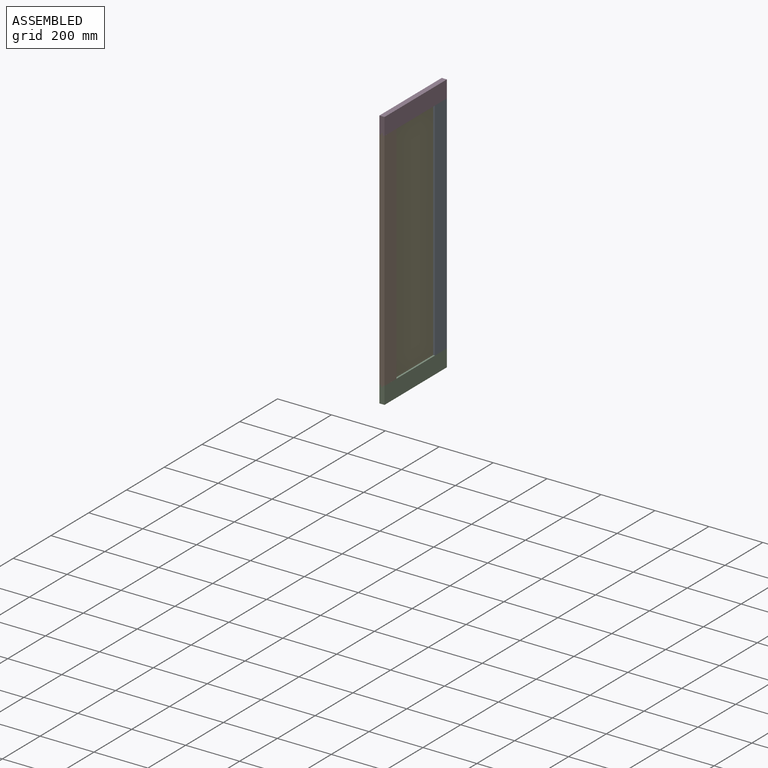
[diagram: assembled view]
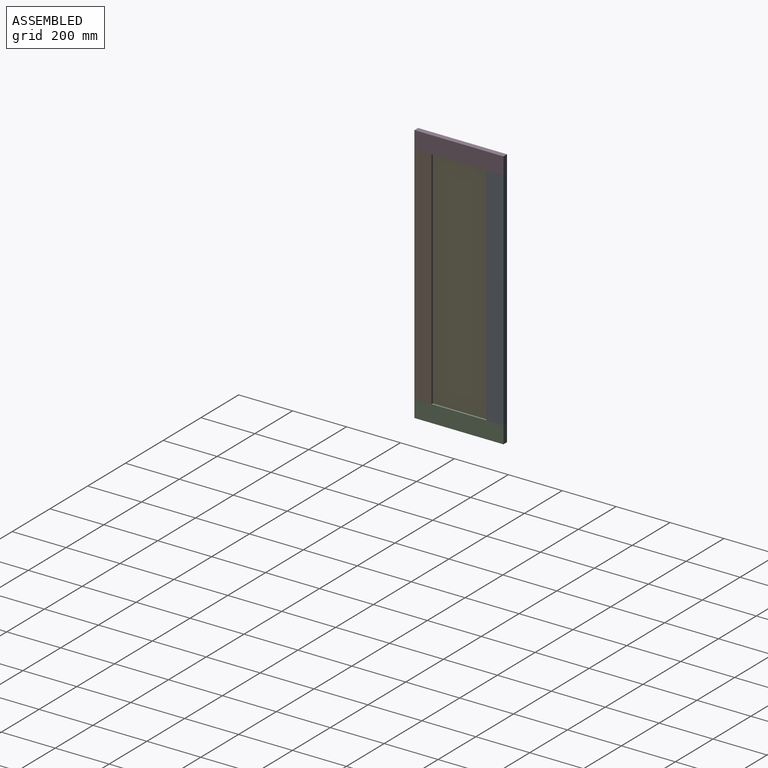
[diagram: assembled view, second angle]
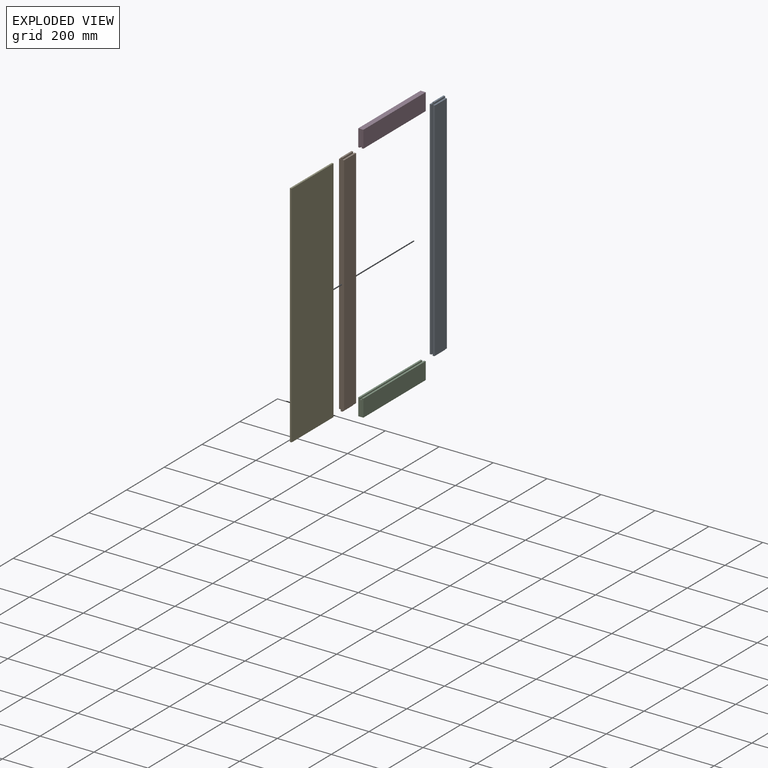
[diagram: exploded view]
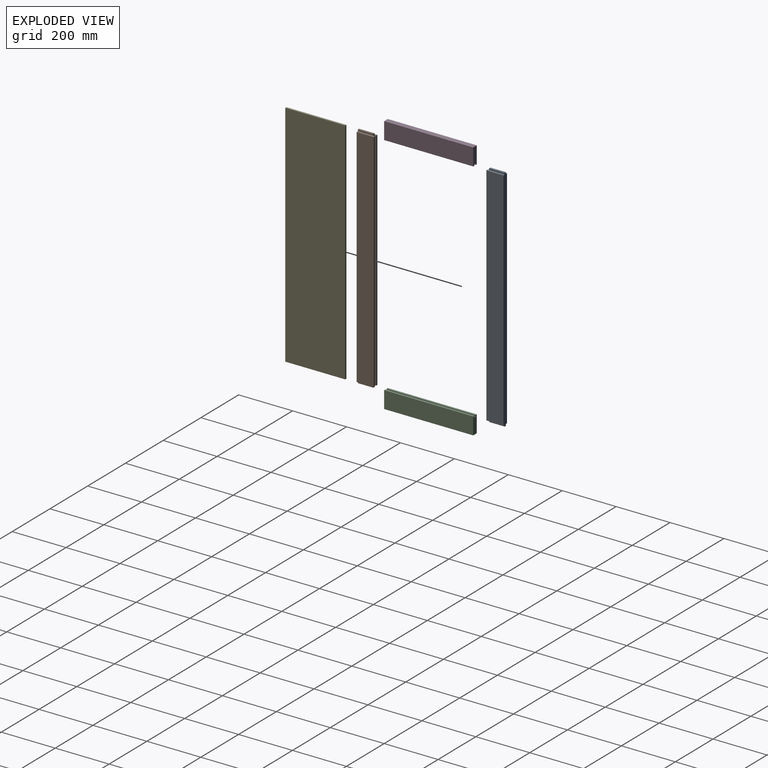
[diagram: exploded view, second angle]
ASSEMBLY  parts=5 mates=4
PART A: 18 faces, bbox 19.1x63.5x850.9 mm
  f0: plane 850.9x19.05mm, normal (0,-1,0), area 16048.4mm2, adj f2,f3,f6,f7,f10,f11,f12,f13
  f1: plane 838.2x6.35mm, normal (1,0,0), area 5322.6mm2, adj f4,f9,f11,f17
  f2: plane 838.2x63.5mm, normal (1,0,0), area 53225.7mm2, adj f0,f5,f13,f15
  f3: plane 838.2x63.5mm, normal (-1,0,0), area 53225.7mm2, adj f0,f4,f11,f17
  f4: plane 838.2x6.35mm, normal (0,1,0), area 5322.6mm2, adj f1,f3,f11,f17
  f5: plane 838.2x6.35mm, normal (0,1,0), area 5322.6mm2, adj f2,f8,f13,f15
  f6: plane 57.15x6.35mm, normal (0,0,1), area 362.9mm2, adj f0,f9,f10,f12
  f7: plane 57.15x6.35mm, normal (0,0,-1), area 362.9mm2, adj f0,f9,f14,f16
  f8: plane 838.2x6.35mm, normal (-1,0,0), area 5322.6mm2, adj f5,f9,f13,f15
  f9: plane 850.9x6.35mm, normal (0,1,0), area 5403.2mm2, adj f1,f6,f7,f8,f10,f12,f14,f16
  f10: plane 57.15x6.35mm, normal (-1,0,0), area 362.9mm2, adj f0,f6,f9,f11
  f11: plane 63.5x6.35mm, normal (0,0,1), area 403.2mm2, adj f0,f1,f3,f4,f10
  f12: plane 57.15x6.35mm, normal (1,0,0), area 362.9mm2, adj f0,f6,f9,f13
  f13: plane 63.5x6.35mm, normal (0,0,1), area 403.2mm2, adj f0,f2,f5,f8,f12
  f14: plane 57.15x6.35mm, normal (1,0,0), area 362.9mm2, adj f0,f7,f9,f15
  f15: plane 63.5x6.35mm, normal (0,0,-1), area 403.2mm2, adj f0,f2,f5,f8,f14
  f16: plane 57.15x6.35mm, normal (-1,0,0), area 362.9mm2, adj f0,f7,f9,f17
  f17: plane 63.5x6.35mm, normal (0,0,-1), area 403.2mm2, adj f0,f1,f3,f4,f16
PART B: same geometry as A
PART C: 10 faces, bbox 19.1x330.2x63.5 mm
  f0: plane 330.2x6.35mm, normal (0,0,1), area 2096.8mm2, adj f1,f4,f5,f8
  f1: plane 63.5x19.05mm, normal (0,-1,0), area 1169.4mm2, adj f0,f2,f3,f5,f6,f7,f8,f9
  f2: plane 330.2x6.35mm, normal (0,0,1), area 2096.8mm2, adj f1,f4,f6,f9
  f3: plane 330.2x19.05mm, normal (0,0,-1), area 6290.3mm2, adj f1,f4,f5,f6
  f4: plane 63.5x19.05mm, normal (0,1,0), area 1169.4mm2, adj f0,f2,f3,f5,f6,f7,f8,f9
  f5: plane 330.2x63.5mm, normal (1,0,0), area 20967.7mm2, adj f0,f1,f3,f4
  f6: plane 330.2x63.5mm, normal (-1,0,0), area 20967.7mm2, adj f1,f2,f3,f4
  f7: plane 330.2x6.35mm, normal (0,0,1), area 2096.8mm2, adj f1,f4,f8,f9
  f8: plane 330.2x6.35mm, normal (-1,0,0), area 2096.8mm2, adj f0,f1,f4,f7
  f9: plane 330.2x6.35mm, normal (1,0,0), area 2096.8mm2, adj f1,f2,f4,f7
PART D: same geometry as C
PART E: 6 faces, bbox 6.4x222.3x850.9 mm
  f0: plane 850.9x6.35mm, normal (0,-1,0), area 5403.2mm2, adj f1,f3,f4,f5
  f1: plane 222.25x6.35mm, normal (0,0,-1), area 1411.3mm2, adj f0,f2,f4,f5
  f2: plane 850.9x6.35mm, normal (0,1,0), area 5403.2mm2, adj f1,f3,f4,f5
  f3: plane 222.25x6.35mm, normal (0,0,1), area 1411.3mm2, adj f0,f2,f4,f5
  f4: plane 850.9x222.25mm, normal (1,0,0), area 189112.5mm2, adj f0,f1,f2,f3
  f5: plane 850.9x222.25mm, normal (-1,0,0), area 189112.5mm2, adj f0,f1,f2,f3
PLACE A rot(axis=(0,0,1),180deg) t=(-430.28,341.41,-140.62)mm
PLACE B t=(-449.33,11.21,-140.62)mm
PLACE C t=(-449.33,11.21,-134.27)mm
PLACE D rot(axis=(0,1,0),180deg) t=(-430.28,11.21,703.93)mm
PLACE E t=(-442.98,78.33,-105.64)mm
MATE fastened B.f0 <-> C.f1  axis (0,-1,0) through (-439.81,11.21,-140.62)mm
MATE fastened D.f4 <-> A.f0  axis (0,1,0) through (-439.81,341.41,710.28)mm
MATE fastened E.f0 <-> B.f9  axis (0,-1,0) through (-439.81,68.36,710.28)mm
MATE fastened A.f0 <-> C.f4  axis (0,1,0) through (-439.81,341.41,-140.62)mm
